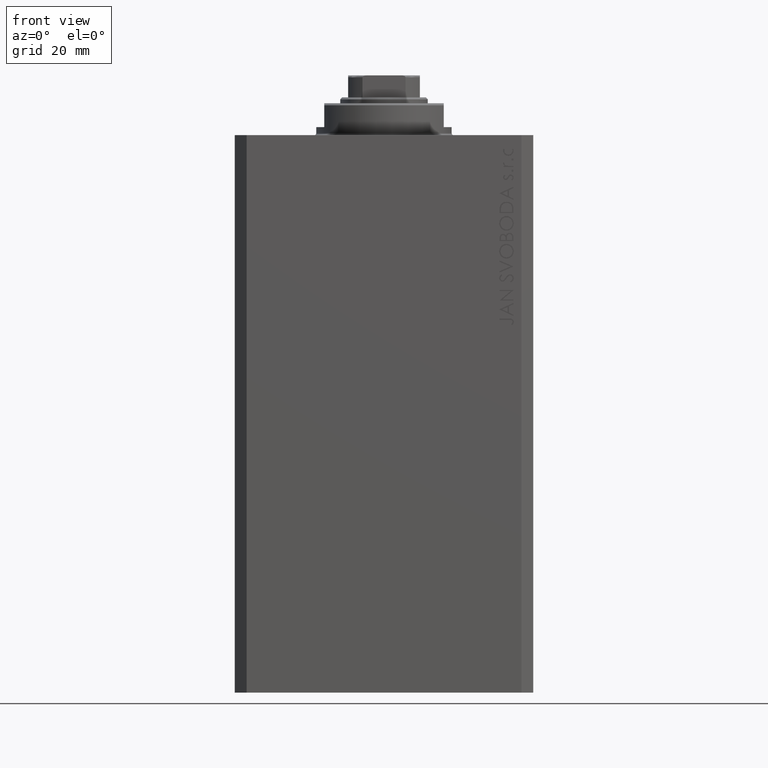
[diagram: clean part render]
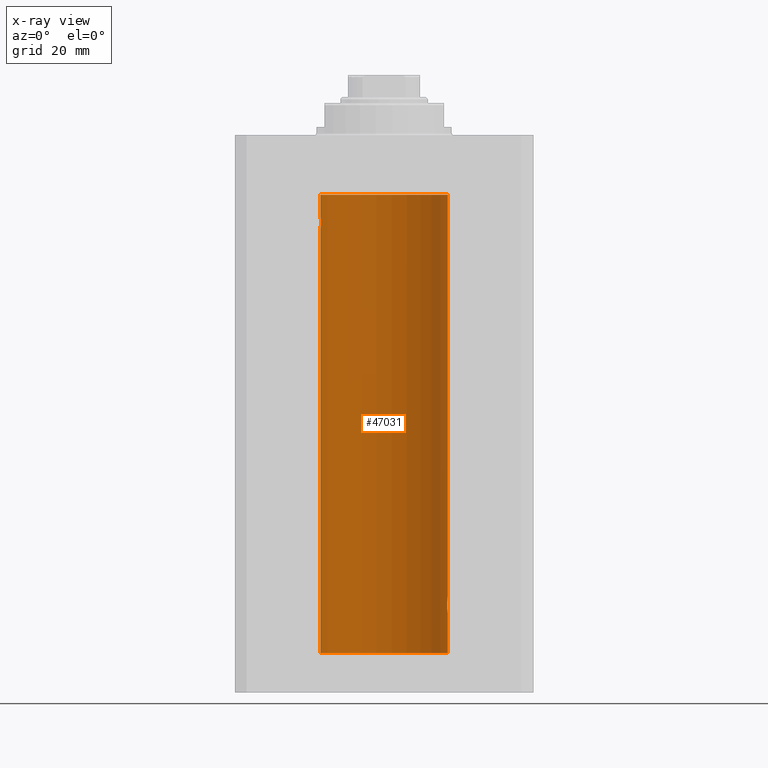
[diagram: x-ray — body ghosted, one internal face saturated and labeled with its STEP entity id]
A machine part, front view, then the same camera in x-ray: the body is ghosted and one INTERNAL B-rep face — a face not visible from any outside direction — is saturated and labeled: STEP entity #47031.
In plain terms, the highlighted cylindrical surface (partial cylindrical patch) has radius 16 mm, axis along (0, 0, 1).
Its self-contained STEP definition (entity closure, byte-faithful):
#55 = B_SPLINE_CURVE_WITH_KNOTS ( 'NONE', 3,
 ( #45278, #19748, #30030, #40986, #34310, #5405, #896, #8286, #11864, #19511, #4940, #23573, #4704, #38141 ),
 .UNSPECIFIED., .F., .F.,
 ( 4, 2, 2, 2, 2, 2, 4 ),
 ( 3.424160547694500162E-18, 0.0003912813346923356916, 0.0007825626693846680221, 0.001173844004077000082, 0.001565125338769331924, 0.002347688008154024883, 0.003130250677538718058 ),
 .UNSPECIFIED. ) ;
#246 = CARTESIAN_POINT ( 'NONE',  ( 15.94566414814287469, 1.320819617421907788, -116.4924075827249226 ) ) ;
#259 = CARTESIAN_POINT ( 'NONE',  ( -15.87451999516785506, 1.999903730784163169, -21.73808537237744432 ) ) ;
#716 = CARTESIAN_POINT ( 'NONE',  ( 15.90582997788426312, 1.734897462761020082, -116.9964633285505187 ) ) ;
#896 = CARTESIAN_POINT ( 'NONE',  ( 15.96893716441426214, 1.002454028984434808, -119.7355604244121707 ) ) ;
#946 = CARTESIAN_POINT ( 'NONE',  ( 15.96887171920781689, 1.003448269354837441, -116.2650518254207412 ) ) ;
#957 = CARTESIAN_POINT ( 'NONE',  ( -15.99834873924246104, 0.2632563459770838055, -23.98690924832126115 ) ) ;
#1247 = VECTOR ( 'NONE', #12296, 1000.000000000000000 ) ;
#2062 = CARTESIAN_POINT ( 'NONE',  ( 0.000000000000000000, 0.000000000000000000, -15.00000000000000000 ) ) ;
#2069 = CARTESIAN_POINT ( 'NONE',  ( 15.87450786638750699, 2.000000000000297096, -118.0000000000000284 ) ) ;
#2686 = VERTEX_POINT ( 'NONE', #36192 ) ;
#2752 = EDGE_CURVE ( 'NONE', #29245, #40230, #28795, .T. ) ;
#2944 = VECTOR ( 'NONE', #14818, 1000.000000000000000 ) ;
#2948 = CARTESIAN_POINT ( 'NONE',  ( -16.00000000000000000, 8.139613661842072923E-16, -20.00000000000000000 ) ) ;
#4307 = CARTESIAN_POINT ( 'NONE',  ( -15.95377581882983442, 1.220169175415122931, -23.59001528100121803 ) ) ;
#4704 = CARTESIAN_POINT ( 'NONE',  ( 15.87450786638751410, 2.000000000000297096, -118.2612453035981872 ) ) ;
#4940 = CARTESIAN_POINT ( 'NONE',  ( 15.90454527605181667, 1.748004143318092174, -119.0061673938155309 ) ) ;
#5405 = CARTESIAN_POINT ( 'NONE',  ( 15.97582125337101999, 0.8876008124445644576, -119.7970409061775143 ) ) ;
#5577 = VERTEX_POINT ( 'NONE', #44135 ) ;
#5592 = DIRECTION ( 'NONE',  ( 0.000000000000000000, 0.000000000000000000, 1.000000000000000000 ) ) ;
#6360 = ORIENTED_EDGE ( 'NONE', *, *, #36406, .F. ) ;
#6527 = CARTESIAN_POINT ( 'NONE',  ( -15.95382484008323409, 1.219564485341772198, -20.40948495147901554 ) ) ;
#6601 = ORIENTED_EDGE ( 'NONE', *, *, #35227, .T. ) ;
#7405 = CARTESIAN_POINT ( 'NONE',  ( -15.99211983514074298, 0.5181437283162074747, -20.06388673317935911 ) ) ;
#7630 = CARTESIAN_POINT ( 'NONE',  ( 15.87450786638750699, 2.000000000000297096, -118.0000000000000284 ) ) ;
#7880 = CARTESIAN_POINT ( 'NONE',  ( -15.88247600692092831, 1.935876924222084350, -22.51913097710111700 ) ) ;
#8119 = CARTESIAN_POINT ( 'NONE',  ( -15.96885838080210362, 1.003662148334370174, -23.73482670674955486 ) ) ;
#8286 = CARTESIAN_POINT ( 'NONE',  ( 15.95380611548778660, 1.219810915946573759, -119.5903287070132706 ) ) ;
#8432 = EDGE_CURVE ( 'NONE', #36871, #41241, #33272, .T. ) ;
#9028 = LINE ( 'NONE', #44844, #17064 ) ;
#10124 = CARTESIAN_POINT ( 'NONE',  ( -15.97583181162461052, 0.8874076679346778462, -20.20286585251778888 ) ) ;
#10522 = CARTESIAN_POINT ( 'NONE',  ( 16.00000000000000000, -2.738688404655786685E-23, -116.0000000000000142 ) ) ;
#10981 = CARTESIAN_POINT ( 'NONE',  ( 15.87617168140110380, 1.986916736633999037, -117.7368093443493962 ) ) ;
#10991 = CARTESIAN_POINT ( 'NONE',  ( -15.98744362947834929, 0.6452446332038160870, -20.10241129944407490 ) ) ;
#11464 = CARTESIAN_POINT ( 'NONE',  ( -15.90580292899658055, 1.735145127817749655, -23.00311247035039486 ) ) ;
#11864 = CARTESIAN_POINT ( 'NONE',  ( 15.94550883254178331, 1.322613426523511881, -119.5058849502901666 ) ) ;
#11919 = CARTESIAN_POINT ( 'NONE',  ( 15.98747899434752817, 0.6443623600228916004, -116.1021155051082729 ) ) ;
#12182 = CARTESIAN_POINT ( 'NONE',  ( -15.98747331501412461, 0.6445079780200578812, -23.89783726498894723 ) ) ;
#12296 = DIRECTION ( 'NONE',  ( -0.000000000000000000, -0.000000000000000000, 1.000000000000000000 ) ) ;
#12316 = ORIENTED_EDGE ( 'NONE', *, *, #17123, .T. ) ;
#12698 = ORIENTED_EDGE ( 'NONE', *, *, #46224, .T. ) ;
#13467 = CARTESIAN_POINT ( 'NONE',  ( -15.94553003295877680, 1.322357532253827461, -20.49389287531754889 ) ) ;
#13628 = VECTOR ( 'NONE', #29692, 1000.000000000000000 ) ;
#14818 = DIRECTION ( 'NONE',  ( -0.000000000000000000, -0.000000000000000000, 1.000000000000000000 ) ) ;
#15115 = CARTESIAN_POINT ( 'NONE',  ( 16.00000000000000000, 0.000000000000000000, -130.0999999999999943 ) ) ;
#15506 = CARTESIAN_POINT ( 'NONE',  ( 15.88249567060696243, 1.935716055827872539, -117.4802781602162156 ) ) ;
#15518 = CARTESIAN_POINT ( 'NONE',  ( -16.00000000000000000, 1.959434851239607631E-15, -23.99999999999999645 ) ) ;
#16118 = DIRECTION ( 'NONE',  ( -0.000000000000000000, -0.000000000000000000, 1.000000000000000000 ) ) ;
#16641 = DIRECTION ( 'NONE',  ( 1.000000000000000000, 0.000000000000000000, 0.000000000000000000 ) ) ;
#17026 = AXIS2_PLACEMENT_3D ( 'NONE', #45469, #5592, #34259 ) ;
#17064 = VECTOR ( 'NONE', #22246, 1000.000000000000000 ) ;
#17123 = EDGE_CURVE ( 'NONE', #45664, #36871, #24132, .T. ) ;
#17524 = CARTESIAN_POINT ( 'NONE',  ( -15.92099550861380131, 1.598790766515155282, -20.77043888260214644 ) ) ;
#18391 = CARTESIAN_POINT ( 'NONE',  ( 15.88712192135845491, 1.897869642555071179, -117.3555794672821264 ) ) ;
#18604 = CARTESIAN_POINT ( 'NONE',  ( -16.00000000000000000, 8.139613661842072923E-16, -20.00000000000000000 ) ) ;
#18748 = EDGE_CURVE ( 'NONE', #45341, #2686, #43703, .T. ) ;
#19091 = CARTESIAN_POINT ( 'NONE',  ( 15.95379436193629985, 1.219925354616377966, -116.4098000984431849 ) ) ;
#19296 = CIRCLE ( 'NONE', #17026, 16.00000000000000000 ) ;
#19511 = CARTESIAN_POINT ( 'NONE',  ( 15.92096875784782739, 1.599058044721133331, -119.2292259384397113 ) ) ;
#19748 = CARTESIAN_POINT ( 'NONE',  ( 15.99999999999999645, 0.1323149458028788361, -120.0000000000000426 ) ) ;
#20792 = CARTESIAN_POINT ( 'NONE',  ( -16.00000000000000000, 1.959434878635765131E-15, -130.0999999999999943 ) ) ;
#21031 = CARTESIAN_POINT ( 'NONE',  ( 16.00000000000000000, 0.000000000000000000, -130.0999999999999943 ) ) ;
#21553 = CIRCLE ( 'NONE', #27676, 16.00000000000000000 ) ;
#21979 = CARTESIAN_POINT ( 'NONE',  ( -15.88137861827787134, 1.947280337074169587, -21.47468243540596333 ) ) ;
#22246 = DIRECTION ( 'NONE',  ( -0.000000000000000000, -0.000000000000000000, 1.000000000000000000 ) ) ;
#22454 = CARTESIAN_POINT ( 'NONE',  ( -15.88709929148890510, 1.898058445420892637, -22.64386968033013403 ) ) ;
#22917 = CARTESIAN_POINT ( 'NONE',  ( 16.00000000000000000, 0.1305637488590863926, -116.0000000000000000 ) ) ;
#23573 = CARTESIAN_POINT ( 'NONE',  ( 15.88135773388169092, 1.947448446433282854, -118.5247245543324794 ) ) ;
#24132 = B_SPLINE_CURVE_WITH_KNOTS ( 'NONE', 3,
 ( #7630, #43687, #10981, #15506, #18391, #26014, #716, #32959, #33657, #246, #19091, #946, #36535, #11919, #36769, #25781, #22917, #29846 ),
 .UNSPECIFIED., .F., .F.,
 ( 4, 2, 2, 2, 2, 2, 2, 2, 4 ),
 ( 0.003130250677538718058, 0.003521348247420690372, 0.003912445817302662686, 0.004303543387184635000, 0.004694640957066607313, 0.005085738526948579627, 0.005476836096830552808, 0.005867933666712525122, 0.006259031236594497435 ),
 .UNSPECIFIED. ) ;
#25741 = EDGE_CURVE ( 'NONE', #5577, #45664, #55, .T. ) ;
#25781 = CARTESIAN_POINT ( 'NONE',  ( 15.99834953062734222, 0.2631943783489354982, -116.0130845296388316 ) ) ;
#25789 = CARTESIAN_POINT ( 'NONE',  ( -15.89876304682112362, 1.797743958659264507, -22.88617757057269841 ) ) ;
#26014 = CARTESIAN_POINT ( 'NONE',  ( 15.89878974374255449, 1.797508500259969777, -117.1133488878856781 ) ) ;
#26022 = CARTESIAN_POINT ( 'NONE',  ( -15.92092783521423272, 1.590393755196006786, -23.21967657442277755 ) ) ;
#27630 = DIRECTION ( 'NONE',  ( 0.000000000000000000, 0.000000000000000000, 1.000000000000000000 ) ) ;
#27676 = AXIS2_PLACEMENT_3D ( 'NONE', #2062, #27630, #16641 ) ;
#28795 = LINE ( 'NONE', #36910, #1247 ) ;
#28981 = VERTEX_POINT ( 'NONE', #21031 ) ;
#29245 = VERTEX_POINT ( 'NONE', #18604 ) ;
#29380 = CARTESIAN_POINT ( 'NONE',  ( -15.87450182760079542, 2.000047931387149092, -22.12985308350499380 ) ) ;
#29630 = ORIENTED_EDGE ( 'NONE', *, *, #25741, .T. ) ;
#29692 = DIRECTION ( 'NONE',  ( -0.000000000000000000, -0.000000000000000000, 1.000000000000000000 ) ) ;
#29846 = CARTESIAN_POINT ( 'NONE',  ( 16.00000000000000000, -2.738688404655786685E-23, -116.0000000000000142 ) ) ;
#29857 = CARTESIAN_POINT ( 'NONE',  ( -15.99206840425678955, 0.5198215460038748681, -23.93569052926128649 ) ) ;
#29942 = CARTESIAN_POINT ( 'NONE',  ( 16.00000000000000000, 0.000000000000000000, -15.00000000000000000 ) ) ;
#30030 = CARTESIAN_POINT ( 'NONE',  ( 15.99836014839681830, 0.2623923436743452187, -119.9869991933481828 ) ) ;
#30328 = CARTESIAN_POINT ( 'NONE',  ( -15.97587307151818159, 0.8866640484200133399, -23.79749928605040665 ) ) ;
#30684 = DIRECTION ( 'NONE',  ( 1.000000000000000000, 0.000000000000000000, 0.000000000000000000 ) ) ;
#31637 = CYLINDRICAL_SURFACE ( 'NONE', #39428, 16.00000000000000000 ) ;
#32959 = CARTESIAN_POINT ( 'NONE',  ( 15.92095407913750726, 1.590131347295332009, -116.7799846904292167 ) ) ;
#32967 = CARTESIAN_POINT ( 'NONE',  ( -15.99836091803360283, 0.2623312429553310565, -20.01299475991587329 ) ) ;
#32973 = CARTESIAN_POINT ( 'NONE',  ( -16.00000000000000000, 1.959434878635765131E-15, -130.0999999999999943 ) ) ;
#33272 = LINE ( 'NONE', #15115, #13628 ) ;
#33657 = CARTESIAN_POINT ( 'NONE',  ( 15.92911104305801828, 1.507378839264603476, -116.6789366429541701 ) ) ;
#33766 = ORIENTED_EDGE ( 'NONE', *, *, #8432, .T. ) ;
#33833 = EDGE_CURVE ( 'NONE', #28981, #5577, #9028, .T. ) ;
#34259 = DIRECTION ( 'NONE',  ( 1.000000000000000000, 0.000000000000000000, 0.000000000000000000 ) ) ;
#34310 = CARTESIAN_POINT ( 'NONE',  ( 15.98743782203464825, 0.6453927552190293904, -119.8975403585268396 ) ) ;
#35227 = EDGE_CURVE ( 'NONE', #41241, #40230, #21553, .T. ) ;
#36192 = CARTESIAN_POINT ( 'NONE',  ( -16.00000000000000000, 1.959434851239607631E-15, -23.99999999999999645 ) ) ;
#36406 = EDGE_CURVE ( 'NONE', #28981, #45341, #19296, .T. ) ;
#36535 = CARTESIAN_POINT ( 'NONE',  ( 15.97588373855009536, 0.8864683965309503311, -116.2024065562767561 ) ) ;
#36769 = CARTESIAN_POINT ( 'NONE',  ( 15.99207203775707065, 0.5197027266689088210, -116.0642796061806337 ) ) ;
#36871 = VERTEX_POINT ( 'NONE', #10522 ) ;
#36910 = CARTESIAN_POINT ( 'NONE',  ( -16.00000000000000000, 1.959434878635765131E-15, -130.0999999999999943 ) ) ;
#37032 = CARTESIAN_POINT ( 'NONE',  ( -15.94564302722881877, 1.321075116345886924, -23.50737160312428742 ) ) ;
#38141 = CARTESIAN_POINT ( 'NONE',  ( 15.87450786638750699, 2.000000000000297096, -118.0000000000000284 ) ) ;
#38911 = ORIENTED_EDGE ( 'NONE', *, *, #33833, .T. ) ;
#39251 = CARTESIAN_POINT ( 'NONE',  ( -15.96895041604535770, 1.002241074716284874, -20.26431901501738153 ) ) ;
#39428 = AXIS2_PLACEMENT_3D ( 'NONE', #42371, #16118, #30684 ) ;
#40213 = EDGE_LOOP ( 'NONE', ( #44905, #6360, #38911, #29630, #12316, #33766, #6601, #41303, #12698 ) ) ;
#40230 = VERTEX_POINT ( 'NONE', #44300 ) ;
#40581 = CARTESIAN_POINT ( 'NONE',  ( -15.92908549642226745, 1.507649250492136606, -23.32075824828932653 ) ) ;
#40986 = CARTESIAN_POINT ( 'NONE',  ( 15.99211620657850474, 0.5182628822511399225, -119.9360834489417442 ) ) ;
#41053 = CARTESIAN_POINT ( 'NONE',  ( -16.00000000000000000, 0.1305944228192325030, -23.99999999999999645 ) ) ;
#41241 = VERTEX_POINT ( 'NONE', #29942 ) ;
#41303 = ORIENTED_EDGE ( 'NONE', *, *, #2752, .F. ) ;
#42371 = CARTESIAN_POINT ( 'NONE',  ( 0.000000000000000000, 0.000000000000000000, -130.0999999999999943 ) ) ;
#42833 = CARTESIAN_POINT ( 'NONE',  ( -15.99999999999999645, 0.1322838750249263340, -20.00000000000000000 ) ) ;
#43687 = CARTESIAN_POINT ( 'NONE',  ( 15.87450786638751055, 2.000000000000297984, -117.8694386949729704 ) ) ;
#43703 = LINE ( 'NONE', #32973, #2944 ) ;
#43933 = CARTESIAN_POINT ( 'NONE',  ( -15.87616016863256618, 1.987008272775798723, -22.26251583007899626 ) ) ;
#44135 = CARTESIAN_POINT ( 'NONE',  ( 16.00000000000000000, 3.524002214059393877E-15, -120.0000000000000284 ) ) ;
#44176 = CARTESIAN_POINT ( 'NONE',  ( -15.90457341008072412, 1.747750603376305278, -20.99340818440418488 ) ) ;
#44300 = CARTESIAN_POINT ( 'NONE',  ( -16.00000000000000000, 1.959434878635765131E-15, -15.00000000000000000 ) ) ;
#44844 = CARTESIAN_POINT ( 'NONE',  ( 16.00000000000000000, 0.000000000000000000, -130.0999999999999943 ) ) ;
#44905 = ORIENTED_EDGE ( 'NONE', *, *, #18748, .F. ) ;
#45278 = CARTESIAN_POINT ( 'NONE',  ( 16.00000000000000000, 3.524002214059393877E-15, -120.0000000000000284 ) ) ;
#45341 = VERTEX_POINT ( 'NONE', #20792 ) ;
#45469 = CARTESIAN_POINT ( 'NONE',  ( 0.000000000000000000, 0.000000000000000000, -130.0999999999999943 ) ) ;
#45549 = B_SPLINE_CURVE_WITH_KNOTS ( 'NONE', 3,
 ( #2948, #42833, #32967, #7405, #10991, #10124, #39251, #6527, #13467, #17524, #44176, #21979, #259, #29380, #43933, #7880, #22454, #25789, #11464, #26022, #40581, #37032, #4307, #8119, #30328, #12182, #29857, #957, #41053, #15518 ),
 .UNSPECIFIED., .F., .F.,
 ( 4, 2, 2, 2, 2, 2, 2, 2, 2, 2, 2, 2, 2, 2, 4 ),
 ( 7.909002969168862706E-19, 0.0003911894522871180884, 0.0007823789045742353095, 0.001173568356861352802, 0.001564757809148469968, 0.002347136713722698664, 0.003129515618296926493, 0.003520705070584046262, 0.003911894522871165597, 0.004303083975158284932, 0.004694273427445404268, 0.005085462879732523603, 0.005476652332019642938, 0.005867841784306762273, 0.006259031236593881609 ),
 .UNSPECIFIED. ) ;
#45664 = VERTEX_POINT ( 'NONE', #2069 ) ;
#45944 = FACE_OUTER_BOUND ( 'NONE', #40213, .T. ) ;
#46224 = EDGE_CURVE ( 'NONE', #29245, #2686, #45549, .T. ) ;
#47031 = ADVANCED_FACE ( 'NONE', ( #45944 ), #31637, .F. ) ;